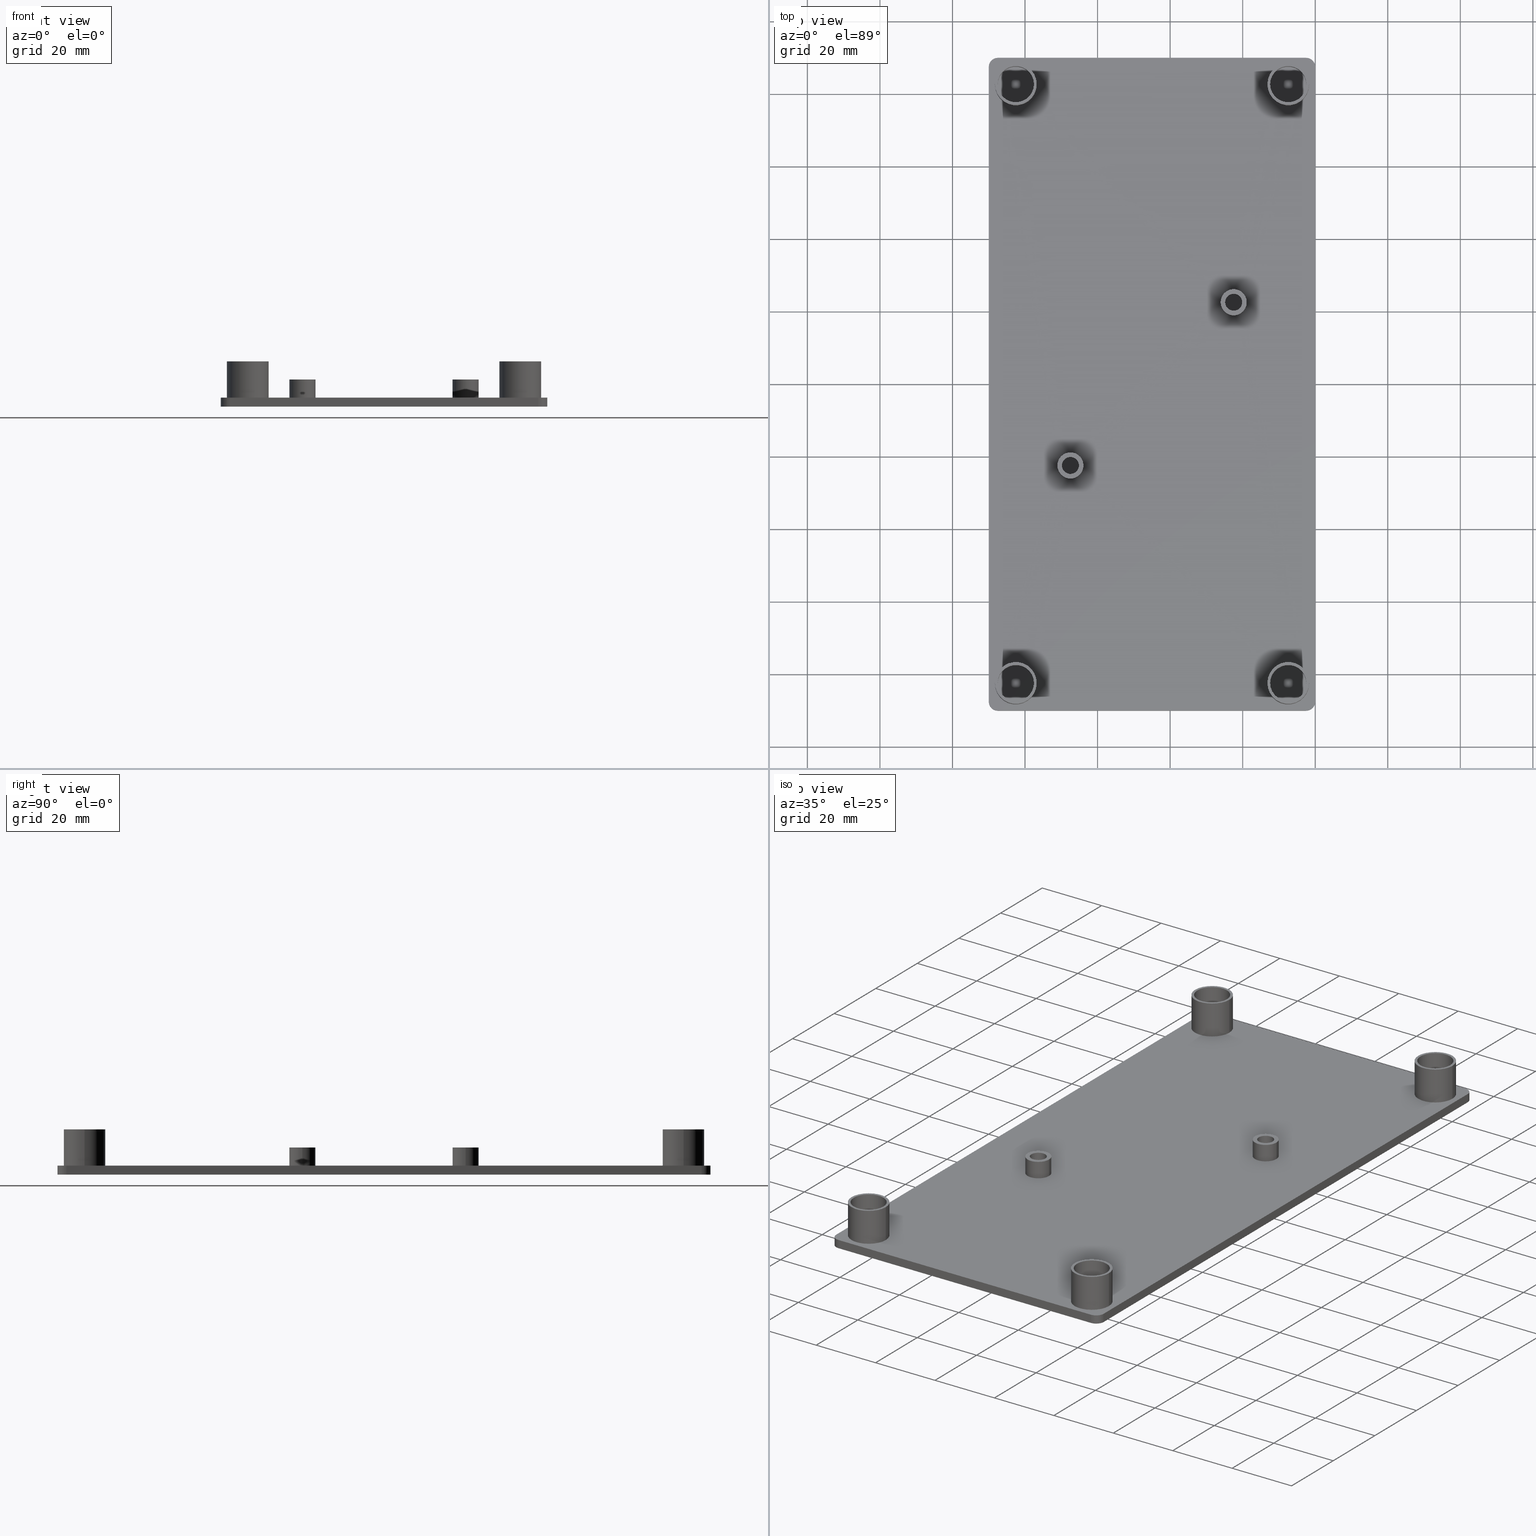
[diagram: canonical four-view strip — front | top / right | iso, engineering-drawing reading convention]
A machine part, canonical four-view strip (front | top / right | iso — engineering-drawing reading convention). The complete STEP part file that produces these views, byte-faithful:
ISO-10303-21;
HEADER;
/****************************************************************
 * Generated by software with PDE/Lib inside                    *
 * PDElib Version v4.4, created Mon 02/23/2004                  *
 * International Technegroup Inc. (www.iti-oh.com)              *
 ****************************************************************/
FILE_DESCRIPTION(('STEP AP203'),'2;1');
FILE_NAME('18.074.00.stp','2011-03-07T09:00:05',(''),(''),'2009.3.110','THINKDESIGN','');
FILE_SCHEMA(('CONFIG_CONTROL_DESIGN'));
ENDSEC;
DATA;
#2=CARTESIAN_POINT('',(0.000000333334668,-87.500000499999999,0.0));
#3=DIRECTION('',(-1.0,-3.809539E-009,0.0));
#4=DIRECTION('',(-3.809539E-009,1.0,0.0));
#5=AXIS2_PLACEMENT_3D('',#2,#3,#4);
#6=PLANE('',#5);
#7=CARTESIAN_POINT('',(0.000000333334668,-87.500000499999999,0.0));
#8=VERTEX_POINT('',#7);
#9=CARTESIAN_POINT('',(0.000000333334668,-87.500000499999999,-2.500000000000000));
#10=VERTEX_POINT('',#9);
#11=CARTESIAN_POINT('',(0.000000333334668,-87.500000499999999,0.0));
#12=DIRECTION('',(0.0,0.0,-1.0));
#13=VECTOR('',#12,2.500000000000000);
#14=LINE('',#11,#13);
#15=EDGE_CURVE('',#8,#10,#14,.T.);
#16=ORIENTED_EDGE('',*,*,#15,.T.);
#17=CARTESIAN_POINT('',(-0.000000333334640,87.500000499999999,-2.500000000000000));
#18=VERTEX_POINT('',#17);
#19=CARTESIAN_POINT('',(0.000000333334668,-87.500000499999999,-2.500000000000000));
#20=DIRECTION('',(-3.809539E-009,1.0,0.0));
#21=VECTOR('',#20,175.000001000000000);
#22=LINE('',#19,#21);
#23=EDGE_CURVE('',#10,#18,#22,.T.);
#24=ORIENTED_EDGE('',*,*,#23,.T.);
#25=CARTESIAN_POINT('',(-0.000000333334640,87.500000499999999,0.0));
#26=VERTEX_POINT('',#25);
#27=CARTESIAN_POINT('',(-0.000000333334640,87.500000499999999,0.0));
#28=DIRECTION('',(0.0,0.0,-1.0));
#29=VECTOR('',#28,2.500000000000000);
#30=LINE('',#27,#29);
#31=EDGE_CURVE('',#26,#18,#30,.T.);
#32=ORIENTED_EDGE('',*,*,#31,.F.);
#33=CARTESIAN_POINT('',(0.000000333334668,-87.500000499999999,0.0));
#34=DIRECTION('',(-3.809539E-009,1.0,0.0));
#35=VECTOR('',#34,175.000001000000000);
#36=LINE('',#33,#35);
#37=EDGE_CURVE('',#8,#26,#36,.T.);
#38=ORIENTED_EDGE('',*,*,#37,.F.);
#39=EDGE_LOOP('',(#16,#24,#32,#38));
#40=FACE_OUTER_BOUND('',#39,.T.);
#41=ADVANCED_FACE('',(#40),#6,.F.);
#42=CARTESIAN_POINT('',(-2.500000333334640,87.500000499999999,0.0));
#43=DIRECTION('',(0.0,0.0,1.0));
#44=DIRECTION('',(1.0,0.0,0.0));
#45=AXIS2_PLACEMENT_3D('',#42,#43,#44);
#46=CYLINDRICAL_SURFACE('',#45,2.500000000000000);
#47=ORIENTED_EDGE('',*,*,#31,.T.);
#48=CARTESIAN_POINT('',(-2.500000333334640,90.000000499999999,-2.500000000000000));
#49=VERTEX_POINT('',#48);
#50=CARTESIAN_POINT('',(-2.500000333334640,87.500000499999999,-2.500000000000000));
#51=DIRECTION('',(0.0,0.0,1.0));
#52=DIRECTION('',(1.0,0.0,0.0));
#53=AXIS2_PLACEMENT_3D('',#50,#51,#52);
#54=CIRCLE('',#53,2.500000000000000);
#55=EDGE_CURVE('',#18,#49,#54,.T.);
#56=ORIENTED_EDGE('',*,*,#55,.T.);
#57=CARTESIAN_POINT('',(-2.500000333334640,90.000000499999999,0.0));
#58=VERTEX_POINT('',#57);
#59=CARTESIAN_POINT('',(-2.500000333334640,90.000000499999999,0.0));
#60=DIRECTION('',(0.0,0.0,-1.0));
#61=VECTOR('',#60,2.500000000000000);
#62=LINE('',#59,#61);
#63=EDGE_CURVE('',#58,#49,#62,.T.);
#64=ORIENTED_EDGE('',*,*,#63,.F.);
#65=CARTESIAN_POINT('',(-2.500000333334640,87.500000499999999,0.0));
#66=DIRECTION('',(0.0,0.0,1.0));
#67=DIRECTION('',(1.0,0.0,0.0));
#68=AXIS2_PLACEMENT_3D('',#65,#66,#67);
#69=CIRCLE('',#68,2.500000000000000);
#70=EDGE_CURVE('',#26,#58,#69,.T.);
#71=ORIENTED_EDGE('',*,*,#70,.F.);
#72=EDGE_LOOP('',(#47,#56,#64,#71));
#73=FACE_OUTER_BOUND('',#72,.T.);
#74=ADVANCED_FACE('',(#73),#46,.T.);
#75=CARTESIAN_POINT('',(-2.500000333334640,90.000000499999999,0.0));
#76=DIRECTION('',(0.0,-1.0,0.0));
#77=DIRECTION('',(-1.0,0.0,0.0));
#78=AXIS2_PLACEMENT_3D('',#75,#76,#77);
#79=PLANE('',#78);
#80=ORIENTED_EDGE('',*,*,#63,.T.);
#81=CARTESIAN_POINT('',(-87.499956333334637,90.000000499999999,-2.500000000000000));
#82=VERTEX_POINT('',#81);
#83=CARTESIAN_POINT('',(-2.500000333334640,90.000000499999999,-2.500000000000000));
#84=DIRECTION('',(-1.0,0.0,0.0));
#85=VECTOR('',#84,84.999955999999997);
#86=LINE('',#83,#85);
#87=EDGE_CURVE('',#49,#82,#86,.T.);
#88=ORIENTED_EDGE('',*,*,#87,.T.);
#89=CARTESIAN_POINT('',(-87.499956333334637,90.000000499999999,0.0));
#90=VERTEX_POINT('',#89);
#91=CARTESIAN_POINT('',(-87.499956333334637,90.000000499999999,0.0));
#92=DIRECTION('',(0.0,0.0,-1.0));
#93=VECTOR('',#92,2.500000000000000);
#94=LINE('',#91,#93);
#95=EDGE_CURVE('',#90,#82,#94,.T.);
#96=ORIENTED_EDGE('',*,*,#95,.F.);
#97=CARTESIAN_POINT('',(-2.500000333334640,90.000000499999999,0.0));
#98=DIRECTION('',(-1.0,0.0,0.0));
#99=VECTOR('',#98,84.999955999999997);
#100=LINE('',#97,#99);
#101=EDGE_CURVE('',#58,#90,#100,.T.);
#102=ORIENTED_EDGE('',*,*,#101,.F.);
#103=EDGE_LOOP('',(#80,#88,#96,#102));
#104=FACE_OUTER_BOUND('',#103,.T.);
#105=ADVANCED_FACE('',(#104),#79,.F.);
#106=CARTESIAN_POINT('',(-87.499956333334637,87.500000499999999,0.0));
#107=DIRECTION('',(0.0,0.0,1.0));
#108=DIRECTION('',(1.0,0.0,0.0));
#109=AXIS2_PLACEMENT_3D('',#106,#107,#108);
#110=CYLINDRICAL_SURFACE('',#109,2.500000000000000);
#111=ORIENTED_EDGE('',*,*,#95,.T.);
#112=CARTESIAN_POINT('',(-89.999956333334652,87.500000499999999,-2.500000000000000));
#113=VERTEX_POINT('',#112);
#114=CARTESIAN_POINT('',(-87.499956333334637,87.500000499999999,-2.500000000000000));
#115=DIRECTION('',(0.0,0.0,1.0));
#116=DIRECTION('',(1.0,0.0,0.0));
#117=AXIS2_PLACEMENT_3D('',#114,#115,#116);
#118=CIRCLE('',#117,2.500000000000000);
#119=EDGE_CURVE('',#82,#113,#118,.T.);
#120=ORIENTED_EDGE('',*,*,#119,.T.);
#121=CARTESIAN_POINT('',(-89.999956333334652,87.500000499999999,0.0));
#122=VERTEX_POINT('',#121);
#123=CARTESIAN_POINT('',(-89.999956333334652,87.500000499999999,0.0));
#124=DIRECTION('',(0.0,0.0,-1.0));
#125=VECTOR('',#124,2.500000000000000);
#126=LINE('',#123,#125);
#127=EDGE_CURVE('',#122,#113,#126,.T.);
#128=ORIENTED_EDGE('',*,*,#127,.F.);
#129=CARTESIAN_POINT('',(-87.499956333334637,87.500000499999999,0.0));
#130=DIRECTION('',(0.0,0.0,1.0));
#131=DIRECTION('',(1.0,0.0,0.0));
#132=AXIS2_PLACEMENT_3D('',#129,#130,#131);
#133=CIRCLE('',#132,2.500000000000000);
#134=EDGE_CURVE('',#90,#122,#133,.T.);
#135=ORIENTED_EDGE('',*,*,#134,.F.);
#136=EDGE_LOOP('',(#111,#120,#128,#135));
#137=FACE_OUTER_BOUND('',#136,.T.);
#138=ADVANCED_FACE('',(#137),#110,.T.);
#139=CARTESIAN_POINT('',(-89.999956333334652,87.500000499999999,0.0));
#140=DIRECTION('',(1.000000000000000,0.000000015238110,0.0));
#141=DIRECTION('',(0.000000015238110,-1.000000000000000,0.0));
#142=AXIS2_PLACEMENT_3D('',#139,#140,#141);
#143=PLANE('',#142);
#144=ORIENTED_EDGE('',*,*,#127,.T.);
#145=CARTESIAN_POINT('',(-89.999953666665334,-87.499999500000001,-2.500000000000000));
#146=VERTEX_POINT('',#145);
#147=CARTESIAN_POINT('',(-89.999956333334652,87.500000499999999,-2.500000000000000));
#148=DIRECTION('',(0.000000015238110,-1.000000000000000,0.0));
#149=VECTOR('',#148,175.000000000000030);
#150=LINE('',#147,#149);
#151=EDGE_CURVE('',#113,#146,#150,.T.);
#152=ORIENTED_EDGE('',*,*,#151,.T.);
#153=CARTESIAN_POINT('',(-89.999953666665334,-87.499999500000001,0.0));
#154=VERTEX_POINT('',#153);
#155=CARTESIAN_POINT('',(-89.999953666665334,-87.499999500000001,0.0));
#156=DIRECTION('',(0.0,0.0,-1.0));
#157=VECTOR('',#156,2.500000000000000);
#158=LINE('',#155,#157);
#159=EDGE_CURVE('',#154,#146,#158,.T.);
#160=ORIENTED_EDGE('',*,*,#159,.F.);
#161=CARTESIAN_POINT('',(-89.999956333334652,87.500000499999999,0.0));
#162=DIRECTION('',(0.000000015238110,-1.000000000000000,0.0));
#163=VECTOR('',#162,175.000000000000030);
#164=LINE('',#161,#163);
#165=EDGE_CURVE('',#122,#154,#164,.T.);
#166=ORIENTED_EDGE('',*,*,#165,.F.);
#167=EDGE_LOOP('',(#144,#152,#160,#166));
#168=FACE_OUTER_BOUND('',#167,.T.);
#169=ADVANCED_FACE('',(#168),#143,.F.);
#170=CARTESIAN_POINT('',(-87.499953666665334,-87.499999500000001,0.0));
#171=DIRECTION('',(0.0,0.0,1.0));
#172=DIRECTION('',(1.0,0.0,0.0));
#173=AXIS2_PLACEMENT_3D('',#170,#171,#172);
#174=CYLINDRICAL_SURFACE('',#173,2.500000000000000);
#175=ORIENTED_EDGE('',*,*,#159,.T.);
#176=CARTESIAN_POINT('',(-87.499953666665334,-89.999999500000001,-2.500000000000000));
#177=VERTEX_POINT('',#176);
#178=CARTESIAN_POINT('',(-87.499953666665334,-87.499999500000001,-2.500000000000000));
#179=DIRECTION('',(0.0,0.0,1.0));
#180=DIRECTION('',(1.0,0.0,0.0));
#181=AXIS2_PLACEMENT_3D('',#178,#179,#180);
#182=CIRCLE('',#181,2.500000000000000);
#183=EDGE_CURVE('',#146,#177,#182,.T.);
#184=ORIENTED_EDGE('',*,*,#183,.T.);
#185=CARTESIAN_POINT('',(-87.499953666665334,-89.999999500000001,0.0));
#186=VERTEX_POINT('',#185);
#187=CARTESIAN_POINT('',(-87.499953666665334,-89.999999500000001,0.0));
#188=DIRECTION('',(0.0,0.0,-1.0));
#189=VECTOR('',#188,2.500000000000000);
#190=LINE('',#187,#189);
#191=EDGE_CURVE('',#186,#177,#190,.T.);
#192=ORIENTED_EDGE('',*,*,#191,.F.);
#193=CARTESIAN_POINT('',(-87.499953666665334,-87.499999500000001,0.0));
#194=DIRECTION('',(0.0,0.0,1.0));
#195=DIRECTION('',(1.0,0.0,0.0));
#196=AXIS2_PLACEMENT_3D('',#193,#194,#195);
#197=CIRCLE('',#196,2.500000000000000);
#198=EDGE_CURVE('',#154,#186,#197,.T.);
#199=ORIENTED_EDGE('',*,*,#198,.F.);
#200=EDGE_LOOP('',(#175,#184,#192,#199));
#201=FACE_OUTER_BOUND('',#200,.T.);
#202=ADVANCED_FACE('',(#201),#174,.T.);
#203=CARTESIAN_POINT('',(-87.499953666665334,-89.999999500000001,0.0));
#204=DIRECTION('',(0.000000011764712,1.0,0.0));
#205=DIRECTION('',(1.0,-0.000000011764712,0.0));
#206=AXIS2_PLACEMENT_3D('',#203,#204,#205);
#207=PLANE('',#206);
#208=ORIENTED_EDGE('',*,*,#191,.T.);
#209=CARTESIAN_POINT('',(-2.499999666665318,-90.000000499999999,-2.500000000000000));
#210=VERTEX_POINT('',#209);
#211=CARTESIAN_POINT('',(-87.499953666665334,-89.999999500000001,-2.500000000000000));
#212=DIRECTION('',(1.0,-0.000000011764712,0.0));
#213=VECTOR('',#212,84.999954000000017);
#214=LINE('',#211,#213);
#215=EDGE_CURVE('',#177,#210,#214,.T.);
#216=ORIENTED_EDGE('',*,*,#215,.T.);
#217=CARTESIAN_POINT('',(-2.499999666665318,-90.000000499999999,0.0));
#218=VERTEX_POINT('',#217);
#219=CARTESIAN_POINT('',(-2.499999666665318,-90.000000499999999,0.0));
#220=DIRECTION('',(0.0,0.0,-1.0));
#221=VECTOR('',#220,2.500000000000000);
#222=LINE('',#219,#221);
#223=EDGE_CURVE('',#218,#210,#222,.T.);
#224=ORIENTED_EDGE('',*,*,#223,.F.);
#225=CARTESIAN_POINT('',(-87.499953666665334,-89.999999500000001,0.0));
#226=DIRECTION('',(1.0,-0.000000011764712,0.0));
#227=VECTOR('',#226,84.999954000000017);
#228=LINE('',#225,#227);
#229=EDGE_CURVE('',#186,#218,#228,.T.);
#230=ORIENTED_EDGE('',*,*,#229,.F.);
#231=EDGE_LOOP('',(#208,#216,#224,#230));
#232=FACE_OUTER_BOUND('',#231,.T.);
#233=ADVANCED_FACE('',(#232),#207,.F.);
#234=CARTESIAN_POINT('',(-2.499999666665318,-87.500000499999999,0.0));
#235=DIRECTION('',(0.0,0.0,1.0));
#236=DIRECTION('',(5.053215E-016,-1.0,0.0));
#237=AXIS2_PLACEMENT_3D('',#234,#235,#236);
#238=CYLINDRICAL_SURFACE('',#237,2.500000000000000);
#239=ORIENTED_EDGE('',*,*,#223,.T.);
#240=CARTESIAN_POINT('',(-2.499999666665318,-87.500000499999999,-2.500000000000000));
#241=DIRECTION('',(0.0,0.0,1.0));
#242=DIRECTION('',(1.0,0.0,0.0));
#243=AXIS2_PLACEMENT_3D('',#240,#241,#242);
#244=CIRCLE('',#243,2.500000000000000);
#245=EDGE_CURVE('',#210,#10,#244,.T.);
#246=ORIENTED_EDGE('',*,*,#245,.T.);
#247=ORIENTED_EDGE('',*,*,#15,.F.);
#248=CARTESIAN_POINT('',(-2.499999666665318,-87.500000499999999,0.0));
#249=DIRECTION('',(0.0,0.0,1.0));
#250=DIRECTION('',(1.0,0.0,0.0));
#251=AXIS2_PLACEMENT_3D('',#248,#249,#250);
#252=CIRCLE('',#251,2.500000000000000);
#253=EDGE_CURVE('',#218,#8,#252,.T.);
#254=ORIENTED_EDGE('',*,*,#253,.F.);
#255=EDGE_LOOP('',(#239,#246,#247,#254));
#256=FACE_OUTER_BOUND('',#255,.T.);
#257=ADVANCED_FACE('',(#256),#238,.T.);
#258=CARTESIAN_POINT('',(-99.000072002600461,-108.000120602159830,0.0));
#259=DIRECTION('',(0.0,0.0,1.0));
#260=DIRECTION('',(1.0,0.0,0.0));
#261=AXIS2_PLACEMENT_3D('',#258,#259,#260);
#262=PLANE('',#261);
#263=ORIENTED_EDGE('',*,*,#37,.T.);
#264=ORIENTED_EDGE('',*,*,#70,.T.);
#265=ORIENTED_EDGE('',*,*,#101,.T.);
#266=ORIENTED_EDGE('',*,*,#134,.T.);
#267=ORIENTED_EDGE('',*,*,#165,.T.);
#268=ORIENTED_EDGE('',*,*,#198,.T.);
#269=ORIENTED_EDGE('',*,*,#229,.T.);
#270=ORIENTED_EDGE('',*,*,#253,.T.);
#271=EDGE_LOOP('',(#263,#264,#265,#266,#267,#268,#269,#270));
#272=FACE_OUTER_BOUND('',#271,.T.);
#273=CARTESIAN_POINT('',(-13.199998666665323,-82.550044500000070,0.0));
#274=VERTEX_POINT('',#273);
#275=CARTESIAN_POINT('',(-1.699998666665323,-82.550044500000070,0.0));
#276=VERTEX_POINT('',#275);
#277=CARTESIAN_POINT('',(-7.449998666665323,-82.550044500000070,0.0));
#278=DIRECTION('',(0.0,0.0,1.0));
#279=DIRECTION('',(1.0,0.0,0.0));
#280=AXIS2_PLACEMENT_3D('',#277,#278,#279);
#281=CIRCLE('',#280,5.750000000000000);
#282=EDGE_CURVE('',#274,#276,#281,.T.);
#283=ORIENTED_EDGE('',*,*,#282,.F.);
#284=CARTESIAN_POINT('',(-7.449998666665323,-82.550044500000070,0.0));
#285=DIRECTION('',(0.0,0.0,1.0));
#286=DIRECTION('',(1.0,0.0,0.0));
#287=AXIS2_PLACEMENT_3D('',#284,#285,#286);
#288=CIRCLE('',#287,5.750000000000000);
#289=EDGE_CURVE('',#276,#274,#288,.T.);
#290=ORIENTED_EDGE('',*,*,#289,.F.);
#291=EDGE_LOOP('',(#283,#290));
#292=FACE_BOUND('',#291,.T.);
#293=CARTESIAN_POINT('',(-88.299998666665346,-82.550044500000070,0.0));
#294=VERTEX_POINT('',#293);
#295=CARTESIAN_POINT('',(-76.799998666665346,-82.550044500000070,0.0));
#296=VERTEX_POINT('',#295);
#297=CARTESIAN_POINT('',(-82.549998666665346,-82.550044500000070,0.0));
#298=DIRECTION('',(0.0,0.0,1.0));
#299=DIRECTION('',(1.0,0.0,0.0));
#300=AXIS2_PLACEMENT_3D('',#297,#298,#299);
#301=CIRCLE('',#300,5.750000000000000);
#302=EDGE_CURVE('',#294,#296,#301,.T.);
#303=ORIENTED_EDGE('',*,*,#302,.F.);
#304=CARTESIAN_POINT('',(-82.549998666665346,-82.550044500000070,0.0));
#305=DIRECTION('',(0.0,0.0,1.0));
#306=DIRECTION('',(1.0,0.0,0.0));
#307=AXIS2_PLACEMENT_3D('',#304,#305,#306);
#308=CIRCLE('',#307,5.750000000000000);
#309=EDGE_CURVE('',#296,#294,#308,.T.);
#310=ORIENTED_EDGE('',*,*,#309,.F.);
#311=EDGE_LOOP('',(#303,#310));
#312=FACE_BOUND('',#311,.T.);
#313=CARTESIAN_POINT('',(-13.200000333334643,82.550000499999953,0.0));
#314=VERTEX_POINT('',#313);
#315=CARTESIAN_POINT('',(-1.700000333334643,82.550000499999953,0.0));
#316=VERTEX_POINT('',#315);
#317=CARTESIAN_POINT('',(-7.450000333334643,82.550000499999953,0.0));
#318=DIRECTION('',(0.0,0.0,1.0));
#319=DIRECTION('',(1.0,0.0,0.0));
#320=AXIS2_PLACEMENT_3D('',#317,#318,#319);
#321=CIRCLE('',#320,5.750000000000000);
#322=EDGE_CURVE('',#314,#316,#321,.T.);
#323=ORIENTED_EDGE('',*,*,#322,.F.);
#324=CARTESIAN_POINT('',(-7.450000333334643,82.550000499999953,0.0));
#325=DIRECTION('',(0.0,0.0,1.0));
#326=DIRECTION('',(1.0,0.0,0.0));
#327=AXIS2_PLACEMENT_3D('',#324,#325,#326);
#328=CIRCLE('',#327,5.750000000000000);
#329=EDGE_CURVE('',#316,#314,#328,.T.);
#330=ORIENTED_EDGE('',*,*,#329,.F.);
#331=EDGE_LOOP('',(#323,#330));
#332=FACE_BOUND('',#331,.T.);
#333=CARTESIAN_POINT('',(-88.300000333334665,82.550045499999953,0.0));
#334=VERTEX_POINT('',#333);
#335=CARTESIAN_POINT('',(-76.800000333334665,82.550045499999953,0.0));
#336=VERTEX_POINT('',#335);
#337=CARTESIAN_POINT('',(-82.550000333334665,82.550045499999953,0.0));
#338=DIRECTION('',(0.0,0.0,1.0));
#339=DIRECTION('',(1.0,0.0,0.0));
#340=AXIS2_PLACEMENT_3D('',#337,#338,#339);
#341=CIRCLE('',#340,5.750000000000000);
#342=EDGE_CURVE('',#334,#336,#341,.T.);
#343=ORIENTED_EDGE('',*,*,#342,.F.);
#344=CARTESIAN_POINT('',(-82.550000333334665,82.550045499999953,0.0));
#345=DIRECTION('',(0.0,0.0,1.0));
#346=DIRECTION('',(1.0,0.0,0.0));
#347=AXIS2_PLACEMENT_3D('',#344,#345,#346);
#348=CIRCLE('',#347,5.750000000000000);
#349=EDGE_CURVE('',#336,#334,#348,.T.);
#350=ORIENTED_EDGE('',*,*,#349,.F.);
#351=EDGE_LOOP('',(#343,#350));
#352=FACE_BOUND('',#351,.T.);
#353=CARTESIAN_POINT('',(-71.099974999995993,-22.500000499999999,0.0));
#354=VERTEX_POINT('',#353);
#355=CARTESIAN_POINT('',(-63.899974999995997,-22.500000499999999,0.0));
#356=VERTEX_POINT('',#355);
#357=CARTESIAN_POINT('',(-67.499974999995999,-22.500000499999999,0.0));
#358=DIRECTION('',(0.0,0.0,1.0));
#359=DIRECTION('',(1.0,0.0,0.0));
#360=AXIS2_PLACEMENT_3D('',#357,#358,#359);
#361=CIRCLE('',#360,3.600000000000000);
#362=EDGE_CURVE('',#354,#356,#361,.T.);
#363=ORIENTED_EDGE('',*,*,#362,.F.);
#364=CARTESIAN_POINT('',(-67.499974999995999,-22.500000499999999,0.0));
#365=DIRECTION('',(0.0,0.0,1.0));
#366=DIRECTION('',(1.0,0.0,0.0));
#367=AXIS2_PLACEMENT_3D('',#364,#365,#366);
#368=CIRCLE('',#367,3.600000000000000);
#369=EDGE_CURVE('',#356,#354,#368,.T.);
#370=ORIENTED_EDGE('',*,*,#369,.F.);
#371=EDGE_LOOP('',(#363,#370));
#372=FACE_BOUND('',#371,.T.);
#373=CARTESIAN_POINT('',(-26.099978333334640,22.500000499999999,0.0));
#374=VERTEX_POINT('',#373);
#375=CARTESIAN_POINT('',(-18.899978333334644,22.500000499999999,0.0));
#376=VERTEX_POINT('',#375);
#377=CARTESIAN_POINT('',(-22.499978333334639,22.500000499999999,0.0));
#378=DIRECTION('',(0.0,0.0,1.0));
#379=DIRECTION('',(1.0,0.0,0.0));
#380=AXIS2_PLACEMENT_3D('',#377,#378,#379);
#381=CIRCLE('',#380,3.600000000000000);
#382=EDGE_CURVE('',#374,#376,#381,.T.);
#383=ORIENTED_EDGE('',*,*,#382,.F.);
#384=CARTESIAN_POINT('',(-22.499978333334639,22.500000499999999,0.0));
#385=DIRECTION('',(0.0,0.0,1.0));
#386=DIRECTION('',(1.0,0.0,0.0));
#387=AXIS2_PLACEMENT_3D('',#384,#385,#386);
#388=CIRCLE('',#387,3.600000000000000);
#389=EDGE_CURVE('',#376,#374,#388,.T.);
#390=ORIENTED_EDGE('',*,*,#389,.F.);
#391=EDGE_LOOP('',(#383,#390));
#392=FACE_BOUND('',#391,.T.);
#393=ADVANCED_FACE('',(#272,#292,#312,#332,#352,#372,#392),#262,.T.);
#394=CARTESIAN_POINT('',(-99.000072002600461,-108.000120602159830,0.0));
#395=DIRECTION('',(0.0,0.0,1.0));
#396=DIRECTION('',(1.0,0.0,0.0));
#397=AXIS2_PLACEMENT_3D('',#394,#395,#396);
#398=PLANE('',#397);
#399=CARTESIAN_POINT('',(-24.849978333334640,22.500000499999999,0.0));
#400=VERTEX_POINT('',#399);
#401=CARTESIAN_POINT('',(-20.149978333334644,22.500000499999999,0.0));
#402=VERTEX_POINT('',#401);
#403=CARTESIAN_POINT('',(-22.499978333334639,22.500000499999999,0.0));
#404=DIRECTION('',(0.0,0.0,-1.0));
#405=DIRECTION('',(1.0,0.0,0.0));
#406=AXIS2_PLACEMENT_3D('',#403,#404,#405);
#407=CIRCLE('',#406,2.350000000000000);
#408=EDGE_CURVE('',#400,#402,#407,.T.);
#409=ORIENTED_EDGE('',*,*,#408,.F.);
#410=CARTESIAN_POINT('',(-22.499978333334639,22.500000499999999,0.0));
#411=DIRECTION('',(0.0,0.0,-1.0));
#412=DIRECTION('',(1.0,0.0,0.0));
#413=AXIS2_PLACEMENT_3D('',#410,#411,#412);
#414=CIRCLE('',#413,2.350000000000000);
#415=EDGE_CURVE('',#402,#400,#414,.T.);
#416=ORIENTED_EDGE('',*,*,#415,.F.);
#417=EDGE_LOOP('',(#409,#416));
#418=FACE_OUTER_BOUND('',#417,.T.);
#419=ADVANCED_FACE('',(#418),#398,.T.);
#420=CARTESIAN_POINT('',(-99.000072002600461,-108.000120602159830,0.0));
#421=DIRECTION('',(0.0,0.0,1.0));
#422=DIRECTION('',(1.0,0.0,0.0));
#423=AXIS2_PLACEMENT_3D('',#420,#421,#422);
#424=PLANE('',#423);
#425=CARTESIAN_POINT('',(-69.849974999995993,-22.500000499999999,0.0));
#426=VERTEX_POINT('',#425);
#427=CARTESIAN_POINT('',(-65.149974999996004,-22.500000499999999,0.0));
#428=VERTEX_POINT('',#427);
#429=CARTESIAN_POINT('',(-67.499974999995999,-22.500000499999999,0.0));
#430=DIRECTION('',(0.0,0.0,-1.0));
#431=DIRECTION('',(1.0,0.0,0.0));
#432=AXIS2_PLACEMENT_3D('',#429,#430,#431);
#433=CIRCLE('',#432,2.350000000000000);
#434=EDGE_CURVE('',#426,#428,#433,.T.);
#435=ORIENTED_EDGE('',*,*,#434,.F.);
#436=CARTESIAN_POINT('',(-67.499974999995999,-22.500000499999999,0.0));
#437=DIRECTION('',(0.0,0.0,-1.0));
#438=DIRECTION('',(1.0,0.0,0.0));
#439=AXIS2_PLACEMENT_3D('',#436,#437,#438);
#440=CIRCLE('',#439,2.350000000000000);
#441=EDGE_CURVE('',#428,#426,#440,.T.);
#442=ORIENTED_EDGE('',*,*,#441,.F.);
#443=EDGE_LOOP('',(#435,#442));
#444=FACE_OUTER_BOUND('',#443,.T.);
#445=ADVANCED_FACE('',(#444),#424,.T.);
#446=CARTESIAN_POINT('',(-99.000072002600461,-108.000120602159830,0.0));
#447=DIRECTION('',(0.0,0.0,1.0));
#448=DIRECTION('',(1.0,0.0,0.0));
#449=AXIS2_PLACEMENT_3D('',#446,#447,#448);
#450=PLANE('',#449);
#451=CARTESIAN_POINT('',(-87.550000333334665,82.550045499999953,0.0));
#452=VERTEX_POINT('',#451);
#453=CARTESIAN_POINT('',(-77.550000333334665,82.550045499999953,0.0));
#454=VERTEX_POINT('',#453);
#455=CARTESIAN_POINT('',(-82.550000333334665,82.550045499999953,0.0));
#456=DIRECTION('',(0.0,0.0,-1.0));
#457=DIRECTION('',(1.0,0.0,0.0));
#458=AXIS2_PLACEMENT_3D('',#455,#456,#457);
#459=CIRCLE('',#458,5.0);
#460=EDGE_CURVE('',#452,#454,#459,.T.);
#461=ORIENTED_EDGE('',*,*,#460,.F.);
#462=CARTESIAN_POINT('',(-82.550000333334665,82.550045499999953,0.0));
#463=DIRECTION('',(0.0,0.0,-1.0));
#464=DIRECTION('',(1.0,0.0,0.0));
#465=AXIS2_PLACEMENT_3D('',#462,#463,#464);
#466=CIRCLE('',#465,5.0);
#467=EDGE_CURVE('',#454,#452,#466,.T.);
#468=ORIENTED_EDGE('',*,*,#467,.F.);
#469=EDGE_LOOP('',(#461,#468));
#470=FACE_OUTER_BOUND('',#469,.T.);
#471=ADVANCED_FACE('',(#470),#450,.T.);
#472=CARTESIAN_POINT('',(-99.000072002600461,-108.000120602159830,0.0));
#473=DIRECTION('',(0.0,0.0,1.0));
#474=DIRECTION('',(1.0,0.0,0.0));
#475=AXIS2_PLACEMENT_3D('',#472,#473,#474);
#476=PLANE('',#475);
#477=CARTESIAN_POINT('',(-12.450000333334643,82.550000499999953,0.0));
#478=VERTEX_POINT('',#477);
#479=CARTESIAN_POINT('',(-2.450000333334643,82.550000499999953,0.0));
#480=VERTEX_POINT('',#479);
#481=CARTESIAN_POINT('',(-7.450000333334643,82.550000499999953,0.0));
#482=DIRECTION('',(0.0,0.0,-1.0));
#483=DIRECTION('',(1.0,0.0,0.0));
#484=AXIS2_PLACEMENT_3D('',#481,#482,#483);
#485=CIRCLE('',#484,5.0);
#486=EDGE_CURVE('',#478,#480,#485,.T.);
#487=ORIENTED_EDGE('',*,*,#486,.F.);
#488=CARTESIAN_POINT('',(-7.450000333334643,82.550000499999953,0.0));
#489=DIRECTION('',(0.0,0.0,-1.0));
#490=DIRECTION('',(1.0,0.0,0.0));
#491=AXIS2_PLACEMENT_3D('',#488,#489,#490);
#492=CIRCLE('',#491,5.0);
#493=EDGE_CURVE('',#480,#478,#492,.T.);
#494=ORIENTED_EDGE('',*,*,#493,.F.);
#495=EDGE_LOOP('',(#487,#494));
#496=FACE_OUTER_BOUND('',#495,.T.);
#497=ADVANCED_FACE('',(#496),#476,.T.);
#498=CARTESIAN_POINT('',(-99.000072002600461,-108.000120602159830,0.0));
#499=DIRECTION('',(0.0,0.0,1.0));
#500=DIRECTION('',(1.0,0.0,0.0));
#501=AXIS2_PLACEMENT_3D('',#498,#499,#500);
#502=PLANE('',#501);
#503=CARTESIAN_POINT('',(-87.549998666665346,-82.550044500000070,0.0));
#504=VERTEX_POINT('',#503);
#505=CARTESIAN_POINT('',(-77.549998666665346,-82.550044500000070,0.0));
#506=VERTEX_POINT('',#505);
#507=CARTESIAN_POINT('',(-82.549998666665346,-82.550044500000070,0.0));
#508=DIRECTION('',(0.0,0.0,-1.0));
#509=DIRECTION('',(1.0,0.0,0.0));
#510=AXIS2_PLACEMENT_3D('',#507,#508,#509);
#511=CIRCLE('',#510,5.0);
#512=EDGE_CURVE('',#504,#506,#511,.T.);
#513=ORIENTED_EDGE('',*,*,#512,.F.);
#514=CARTESIAN_POINT('',(-82.549998666665346,-82.550044500000070,0.0));
#515=DIRECTION('',(0.0,0.0,-1.0));
#516=DIRECTION('',(1.0,0.0,0.0));
#517=AXIS2_PLACEMENT_3D('',#514,#515,#516);
#518=CIRCLE('',#517,5.0);
#519=EDGE_CURVE('',#506,#504,#518,.T.);
#520=ORIENTED_EDGE('',*,*,#519,.F.);
#521=EDGE_LOOP('',(#513,#520));
#522=FACE_OUTER_BOUND('',#521,.T.);
#523=ADVANCED_FACE('',(#522),#502,.T.);
#524=CARTESIAN_POINT('',(-99.000072002600461,-108.000120602159830,0.0));
#525=DIRECTION('',(0.0,0.0,1.0));
#526=DIRECTION('',(1.0,0.0,0.0));
#527=AXIS2_PLACEMENT_3D('',#524,#525,#526);
#528=PLANE('',#527);
#529=CARTESIAN_POINT('',(-12.449998666665323,-82.550044500000070,0.0));
#530=VERTEX_POINT('',#529);
#531=CARTESIAN_POINT('',(-2.449998666665323,-82.550044500000070,0.0));
#532=VERTEX_POINT('',#531);
#533=CARTESIAN_POINT('',(-7.449998666665323,-82.550044500000070,0.0));
#534=DIRECTION('',(0.0,0.0,-1.0));
#535=DIRECTION('',(1.0,0.0,0.0));
#536=AXIS2_PLACEMENT_3D('',#533,#534,#535);
#537=CIRCLE('',#536,5.0);
#538=EDGE_CURVE('',#530,#532,#537,.T.);
#539=ORIENTED_EDGE('',*,*,#538,.F.);
#540=CARTESIAN_POINT('',(-7.449998666665323,-82.550044500000070,0.0));
#541=DIRECTION('',(0.0,0.0,-1.0));
#542=DIRECTION('',(1.0,0.0,0.0));
#543=AXIS2_PLACEMENT_3D('',#540,#541,#542);
#544=CIRCLE('',#543,5.0);
#545=EDGE_CURVE('',#532,#530,#544,.T.);
#546=ORIENTED_EDGE('',*,*,#545,.F.);
#547=EDGE_LOOP('',(#539,#546));
#548=FACE_OUTER_BOUND('',#547,.T.);
#549=ADVANCED_FACE('',(#548),#528,.T.);
#550=CARTESIAN_POINT('',(-99.000072002600461,-108.000120602159830,-2.500000000000000));
#551=DIRECTION('',(0.0,0.0,1.0));
#552=DIRECTION('',(1.0,0.0,0.0));
#553=AXIS2_PLACEMENT_3D('',#550,#551,#552);
#554=PLANE('',#553);
#555=ORIENTED_EDGE('',*,*,#245,.F.);
#556=ORIENTED_EDGE('',*,*,#215,.F.);
#557=ORIENTED_EDGE('',*,*,#183,.F.);
#558=ORIENTED_EDGE('',*,*,#151,.F.);
#559=ORIENTED_EDGE('',*,*,#119,.F.);
#560=ORIENTED_EDGE('',*,*,#87,.F.);
#561=ORIENTED_EDGE('',*,*,#55,.F.);
#562=ORIENTED_EDGE('',*,*,#23,.F.);
#563=EDGE_LOOP('',(#555,#556,#557,#558,#559,#560,#561,#562));
#564=FACE_OUTER_BOUND('',#563,.T.);
#565=ADVANCED_FACE('',(#564),#554,.F.);
#566=CARTESIAN_POINT('',(-7.449998666665323,-82.550044500000070,0.0));
#567=DIRECTION('',(0.0,0.0,1.0));
#568=DIRECTION('',(1.0,0.0,0.0));
#569=AXIS2_PLACEMENT_3D('',#566,#567,#568);
#570=CYLINDRICAL_SURFACE('',#569,5.750000000000000);
#571=CARTESIAN_POINT('',(-13.199998666665323,-82.550044500000070,10.0));
#572=VERTEX_POINT('',#571);
#573=CARTESIAN_POINT('',(-1.699998666665323,-82.550044500000070,10.0));
#574=VERTEX_POINT('',#573);
#575=CARTESIAN_POINT('',(-7.449998666665323,-82.550044500000070,10.0));
#576=DIRECTION('',(0.0,0.0,1.0));
#577=DIRECTION('',(1.0,0.0,0.0));
#578=AXIS2_PLACEMENT_3D('',#575,#576,#577);
#579=CIRCLE('',#578,5.750000000000000);
#580=EDGE_CURVE('',#572,#574,#579,.T.);
#581=ORIENTED_EDGE('',*,*,#580,.F.);
#582=CARTESIAN_POINT('',(-7.449998666665323,-82.550044500000070,10.0));
#583=DIRECTION('',(0.0,0.0,1.0));
#584=DIRECTION('',(1.0,0.0,0.0));
#585=AXIS2_PLACEMENT_3D('',#582,#583,#584);
#586=CIRCLE('',#585,5.750000000000000);
#587=EDGE_CURVE('',#574,#572,#586,.T.);
#588=ORIENTED_EDGE('',*,*,#587,.F.);
#589=CARTESIAN_POINT('',(-1.699998666665323,-82.550044500000070,0.0));
#590=DIRECTION('',(0.0,0.0,1.0));
#591=VECTOR('',#590,10.0);
#592=LINE('',#589,#591);
#593=EDGE_CURVE('',#276,#574,#592,.T.);
#594=ORIENTED_EDGE('',*,*,#593,.F.);
#595=ORIENTED_EDGE('',*,*,#289,.T.);
#596=ORIENTED_EDGE('',*,*,#282,.T.);
#597=ORIENTED_EDGE('',*,*,#593,.T.);
#598=EDGE_LOOP('',(#581,#588,#594,#595,#596,#597));
#599=FACE_OUTER_BOUND('',#598,.T.);
#600=ADVANCED_FACE('',(#599),#570,.T.);
#601=CARTESIAN_POINT('',(-7.449998666665323,-82.550044500000070,0.0));
#602=DIRECTION('',(0.0,0.0,-1.0));
#603=DIRECTION('',(1.0,-2.449294E-016,0.0));
#604=AXIS2_PLACEMENT_3D('',#601,#602,#603);
#605=CYLINDRICAL_SURFACE('',#604,5.0);
#606=CARTESIAN_POINT('',(-12.449998666665323,-82.550044500000070,10.0));
#607=VERTEX_POINT('',#606);
#608=CARTESIAN_POINT('',(-2.449998666665323,-82.550044500000070,10.0));
#609=VERTEX_POINT('',#608);
#610=CARTESIAN_POINT('',(-7.449998666665323,-82.550044500000070,10.0));
#611=DIRECTION('',(0.0,0.0,-1.0));
#612=DIRECTION('',(1.0,0.0,0.0));
#613=AXIS2_PLACEMENT_3D('',#610,#611,#612);
#614=CIRCLE('',#613,5.0);
#615=EDGE_CURVE('',#607,#609,#614,.T.);
#616=ORIENTED_EDGE('',*,*,#615,.F.);
#617=CARTESIAN_POINT('',(-7.449998666665323,-82.550044500000070,10.0));
#618=DIRECTION('',(0.0,0.0,-1.0));
#619=DIRECTION('',(1.0,0.0,0.0));
#620=AXIS2_PLACEMENT_3D('',#617,#618,#619);
#621=CIRCLE('',#620,5.0);
#622=EDGE_CURVE('',#609,#607,#621,.T.);
#623=ORIENTED_EDGE('',*,*,#622,.F.);
#624=CARTESIAN_POINT('',(-2.449998666665323,-82.550044500000070,0.0));
#625=DIRECTION('',(0.0,0.0,1.0));
#626=VECTOR('',#625,10.0);
#627=LINE('',#624,#626);
#628=EDGE_CURVE('',#532,#609,#627,.T.);
#629=ORIENTED_EDGE('',*,*,#628,.F.);
#630=ORIENTED_EDGE('',*,*,#545,.T.);
#631=ORIENTED_EDGE('',*,*,#538,.T.);
#632=ORIENTED_EDGE('',*,*,#628,.T.);
#633=EDGE_LOOP('',(#616,#623,#629,#630,#631,#632));
#634=FACE_OUTER_BOUND('',#633,.T.);
#635=ADVANCED_FACE('',(#634),#605,.F.);
#636=CARTESIAN_POINT('',(-14.350118668820329,-89.450164502127052,10.0));
#637=DIRECTION('',(0.0,0.0,1.0));
#638=DIRECTION('',(1.0,0.0,0.0));
#639=AXIS2_PLACEMENT_3D('',#636,#637,#638);
#640=PLANE('',#639);
#641=ORIENTED_EDGE('',*,*,#587,.T.);
#642=ORIENTED_EDGE('',*,*,#580,.T.);
#643=EDGE_LOOP('',(#641,#642));
#644=FACE_OUTER_BOUND('',#643,.T.);
#645=ORIENTED_EDGE('',*,*,#622,.T.);
#646=ORIENTED_EDGE('',*,*,#615,.T.);
#647=EDGE_LOOP('',(#645,#646));
#648=FACE_BOUND('',#647,.T.);
#649=ADVANCED_FACE('',(#644,#648),#640,.T.);
#650=CARTESIAN_POINT('',(-82.549998666665346,-82.550044500000070,0.0));
#651=DIRECTION('',(0.0,0.0,1.0));
#652=DIRECTION('',(1.0,0.0,0.0));
#653=AXIS2_PLACEMENT_3D('',#650,#651,#652);
#654=CYLINDRICAL_SURFACE('',#653,5.750000000000000);
#655=CARTESIAN_POINT('',(-88.299998666665346,-82.550044500000070,10.0));
#656=VERTEX_POINT('',#655);
#657=CARTESIAN_POINT('',(-76.799998666665346,-82.550044500000070,10.0));
#658=VERTEX_POINT('',#657);
#659=CARTESIAN_POINT('',(-82.549998666665346,-82.550044500000070,10.0));
#660=DIRECTION('',(0.0,0.0,1.0));
#661=DIRECTION('',(1.0,0.0,0.0));
#662=AXIS2_PLACEMENT_3D('',#659,#660,#661);
#663=CIRCLE('',#662,5.750000000000000);
#664=EDGE_CURVE('',#656,#658,#663,.T.);
#665=ORIENTED_EDGE('',*,*,#664,.F.);
#666=CARTESIAN_POINT('',(-82.549998666665346,-82.550044500000070,10.0));
#667=DIRECTION('',(0.0,0.0,1.0));
#668=DIRECTION('',(1.0,0.0,0.0));
#669=AXIS2_PLACEMENT_3D('',#666,#667,#668);
#670=CIRCLE('',#669,5.750000000000000);
#671=EDGE_CURVE('',#658,#656,#670,.T.);
#672=ORIENTED_EDGE('',*,*,#671,.F.);
#673=CARTESIAN_POINT('',(-76.799998666665346,-82.550044500000070,0.0));
#674=DIRECTION('',(0.0,0.0,1.0));
#675=VECTOR('',#674,10.0);
#676=LINE('',#673,#675);
#677=EDGE_CURVE('',#296,#658,#676,.T.);
#678=ORIENTED_EDGE('',*,*,#677,.F.);
#679=ORIENTED_EDGE('',*,*,#309,.T.);
#680=ORIENTED_EDGE('',*,*,#302,.T.);
#681=ORIENTED_EDGE('',*,*,#677,.T.);
#682=EDGE_LOOP('',(#665,#672,#678,#679,#680,#681));
#683=FACE_OUTER_BOUND('',#682,.T.);
#684=ADVANCED_FACE('',(#683),#654,.T.);
#685=CARTESIAN_POINT('',(-82.549998666665346,-82.550044500000070,0.0));
#686=DIRECTION('',(0.0,0.0,-1.0));
#687=DIRECTION('',(1.0,-2.449294E-016,0.0));
#688=AXIS2_PLACEMENT_3D('',#685,#686,#687);
#689=CYLINDRICAL_SURFACE('',#688,5.0);
#690=CARTESIAN_POINT('',(-87.549998666665346,-82.550044500000070,10.0));
#691=VERTEX_POINT('',#690);
#692=CARTESIAN_POINT('',(-77.549998666665346,-82.550044500000070,10.0));
#693=VERTEX_POINT('',#692);
#694=CARTESIAN_POINT('',(-82.549998666665346,-82.550044500000070,10.0));
#695=DIRECTION('',(0.0,0.0,-1.0));
#696=DIRECTION('',(1.0,0.0,0.0));
#697=AXIS2_PLACEMENT_3D('',#694,#695,#696);
#698=CIRCLE('',#697,5.0);
#699=EDGE_CURVE('',#691,#693,#698,.T.);
#700=ORIENTED_EDGE('',*,*,#699,.F.);
#701=CARTESIAN_POINT('',(-82.549998666665346,-82.550044500000070,10.0));
#702=DIRECTION('',(0.0,0.0,-1.0));
#703=DIRECTION('',(1.0,0.0,0.0));
#704=AXIS2_PLACEMENT_3D('',#701,#702,#703);
#705=CIRCLE('',#704,5.0);
#706=EDGE_CURVE('',#693,#691,#705,.T.);
#707=ORIENTED_EDGE('',*,*,#706,.F.);
#708=CARTESIAN_POINT('',(-77.549998666665346,-82.550044500000070,0.0));
#709=DIRECTION('',(0.0,0.0,1.0));
#710=VECTOR('',#709,10.0);
#711=LINE('',#708,#710);
#712=EDGE_CURVE('',#506,#693,#711,.T.);
#713=ORIENTED_EDGE('',*,*,#712,.F.);
#714=ORIENTED_EDGE('',*,*,#519,.T.);
#715=ORIENTED_EDGE('',*,*,#512,.T.);
#716=ORIENTED_EDGE('',*,*,#712,.T.);
#717=EDGE_LOOP('',(#700,#707,#713,#714,#715,#716));
#718=FACE_OUTER_BOUND('',#717,.T.);
#719=ADVANCED_FACE('',(#718),#689,.F.);
#720=CARTESIAN_POINT('',(-89.450118668820352,-89.450164502127052,10.0));
#721=DIRECTION('',(0.0,0.0,1.0));
#722=DIRECTION('',(1.0,0.0,0.0));
#723=AXIS2_PLACEMENT_3D('',#720,#721,#722);
#724=PLANE('',#723);
#725=ORIENTED_EDGE('',*,*,#671,.T.);
#726=ORIENTED_EDGE('',*,*,#664,.T.);
#727=EDGE_LOOP('',(#725,#726));
#728=FACE_OUTER_BOUND('',#727,.T.);
#729=ORIENTED_EDGE('',*,*,#706,.T.);
#730=ORIENTED_EDGE('',*,*,#699,.T.);
#731=EDGE_LOOP('',(#729,#730));
#732=FACE_BOUND('',#731,.T.);
#733=ADVANCED_FACE('',(#728,#732),#724,.T.);
#734=CARTESIAN_POINT('',(-7.450000333334643,82.550000499999953,0.0));
#735=DIRECTION('',(0.0,0.0,1.0));
#736=DIRECTION('',(1.0,0.0,0.0));
#737=AXIS2_PLACEMENT_3D('',#734,#735,#736);
#738=CYLINDRICAL_SURFACE('',#737,5.750000000000000);
#739=CARTESIAN_POINT('',(-13.200000333334643,82.550000499999953,10.0));
#740=VERTEX_POINT('',#739);
#741=CARTESIAN_POINT('',(-1.700000333334643,82.550000499999953,10.0));
#742=VERTEX_POINT('',#741);
#743=CARTESIAN_POINT('',(-7.450000333334643,82.550000499999953,10.0));
#744=DIRECTION('',(0.0,0.0,1.0));
#745=DIRECTION('',(1.0,0.0,0.0));
#746=AXIS2_PLACEMENT_3D('',#743,#744,#745);
#747=CIRCLE('',#746,5.750000000000000);
#748=EDGE_CURVE('',#740,#742,#747,.T.);
#749=ORIENTED_EDGE('',*,*,#748,.F.);
#750=CARTESIAN_POINT('',(-7.450000333334643,82.550000499999953,10.0));
#751=DIRECTION('',(0.0,0.0,1.0));
#752=DIRECTION('',(1.0,0.0,0.0));
#753=AXIS2_PLACEMENT_3D('',#750,#751,#752);
#754=CIRCLE('',#753,5.750000000000000);
#755=EDGE_CURVE('',#742,#740,#754,.T.);
#756=ORIENTED_EDGE('',*,*,#755,.F.);
#757=CARTESIAN_POINT('',(-1.700000333334643,82.550000499999953,0.0));
#758=DIRECTION('',(0.0,0.0,1.0));
#759=VECTOR('',#758,10.0);
#760=LINE('',#757,#759);
#761=EDGE_CURVE('',#316,#742,#760,.T.);
#762=ORIENTED_EDGE('',*,*,#761,.F.);
#763=ORIENTED_EDGE('',*,*,#329,.T.);
#764=ORIENTED_EDGE('',*,*,#322,.T.);
#765=ORIENTED_EDGE('',*,*,#761,.T.);
#766=EDGE_LOOP('',(#749,#756,#762,#763,#764,#765));
#767=FACE_OUTER_BOUND('',#766,.T.);
#768=ADVANCED_FACE('',(#767),#738,.T.);
#769=CARTESIAN_POINT('',(-7.450000333334643,82.550000499999953,0.0));
#770=DIRECTION('',(0.0,0.0,-1.0));
#771=DIRECTION('',(1.0,-2.449294E-016,0.0));
#772=AXIS2_PLACEMENT_3D('',#769,#770,#771);
#773=CYLINDRICAL_SURFACE('',#772,5.0);
#774=CARTESIAN_POINT('',(-12.450000333334643,82.550000499999953,10.0));
#775=VERTEX_POINT('',#774);
#776=CARTESIAN_POINT('',(-2.450000333334643,82.550000499999953,10.0));
#777=VERTEX_POINT('',#776);
#778=CARTESIAN_POINT('',(-7.450000333334643,82.550000499999953,10.0));
#779=DIRECTION('',(0.0,0.0,-1.0));
#780=DIRECTION('',(1.0,0.0,0.0));
#781=AXIS2_PLACEMENT_3D('',#778,#779,#780);
#782=CIRCLE('',#781,5.0);
#783=EDGE_CURVE('',#775,#777,#782,.T.);
#784=ORIENTED_EDGE('',*,*,#783,.F.);
#785=CARTESIAN_POINT('',(-7.450000333334643,82.550000499999953,10.0));
#786=DIRECTION('',(0.0,0.0,-1.0));
#787=DIRECTION('',(1.0,0.0,0.0));
#788=AXIS2_PLACEMENT_3D('',#785,#786,#787);
#789=CIRCLE('',#788,5.0);
#790=EDGE_CURVE('',#777,#775,#789,.T.);
#791=ORIENTED_EDGE('',*,*,#790,.F.);
#792=CARTESIAN_POINT('',(-2.450000333334643,82.550000499999953,0.0));
#793=DIRECTION('',(0.0,0.0,1.0));
#794=VECTOR('',#793,10.0);
#795=LINE('',#792,#794);
#796=EDGE_CURVE('',#480,#777,#795,.T.);
#797=ORIENTED_EDGE('',*,*,#796,.F.);
#798=ORIENTED_EDGE('',*,*,#493,.T.);
#799=ORIENTED_EDGE('',*,*,#486,.T.);
#800=ORIENTED_EDGE('',*,*,#796,.T.);
#801=EDGE_LOOP('',(#784,#791,#797,#798,#799,#800));
#802=FACE_OUTER_BOUND('',#801,.T.);
#803=ADVANCED_FACE('',(#802),#773,.F.);
#804=CARTESIAN_POINT('',(-14.350120335929560,75.649880497433116,10.0));
#805=DIRECTION('',(0.0,0.0,1.0));
#806=DIRECTION('',(1.0,0.0,0.0));
#807=AXIS2_PLACEMENT_3D('',#804,#805,#806);
#808=PLANE('',#807);
#809=ORIENTED_EDGE('',*,*,#755,.T.);
#810=ORIENTED_EDGE('',*,*,#748,.T.);
#811=EDGE_LOOP('',(#809,#810));
#812=FACE_OUTER_BOUND('',#811,.T.);
#813=ORIENTED_EDGE('',*,*,#790,.T.);
#814=ORIENTED_EDGE('',*,*,#783,.T.);
#815=EDGE_LOOP('',(#813,#814));
#816=FACE_BOUND('',#815,.T.);
#817=ADVANCED_FACE('',(#812,#816),#808,.T.);
#818=CARTESIAN_POINT('',(-82.550000333334665,82.550045499999953,0.0));
#819=DIRECTION('',(0.0,0.0,1.0));
#820=DIRECTION('',(1.0,0.0,0.0));
#821=AXIS2_PLACEMENT_3D('',#818,#819,#820);
#822=CYLINDRICAL_SURFACE('',#821,5.750000000000000);
#823=CARTESIAN_POINT('',(-88.300000333334665,82.550045499999953,10.0));
#824=VERTEX_POINT('',#823);
#825=CARTESIAN_POINT('',(-76.800000333334665,82.550045499999953,10.0));
#826=VERTEX_POINT('',#825);
#827=CARTESIAN_POINT('',(-82.550000333334665,82.550045499999953,10.0));
#828=DIRECTION('',(0.0,0.0,1.0));
#829=DIRECTION('',(1.0,0.0,0.0));
#830=AXIS2_PLACEMENT_3D('',#827,#828,#829);
#831=CIRCLE('',#830,5.750000000000000);
#832=EDGE_CURVE('',#824,#826,#831,.T.);
#833=ORIENTED_EDGE('',*,*,#832,.F.);
#834=CARTESIAN_POINT('',(-82.550000333334665,82.550045499999953,10.0));
#835=DIRECTION('',(0.0,0.0,1.0));
#836=DIRECTION('',(1.0,0.0,0.0));
#837=AXIS2_PLACEMENT_3D('',#834,#835,#836);
#838=CIRCLE('',#837,5.750000000000000);
#839=EDGE_CURVE('',#826,#824,#838,.T.);
#840=ORIENTED_EDGE('',*,*,#839,.F.);
#841=CARTESIAN_POINT('',(-76.800000333334665,82.550045499999953,0.0));
#842=DIRECTION('',(0.0,0.0,1.0));
#843=VECTOR('',#842,10.0);
#844=LINE('',#841,#843);
#845=EDGE_CURVE('',#336,#826,#844,.T.);
#846=ORIENTED_EDGE('',*,*,#845,.F.);
#847=ORIENTED_EDGE('',*,*,#349,.T.);
#848=ORIENTED_EDGE('',*,*,#342,.T.);
#849=ORIENTED_EDGE('',*,*,#845,.T.);
#850=EDGE_LOOP('',(#833,#840,#846,#847,#848,#849));
#851=FACE_OUTER_BOUND('',#850,.T.);
#852=ADVANCED_FACE('',(#851),#822,.T.);
#853=CARTESIAN_POINT('',(-82.550000333334665,82.550045499999953,0.0));
#854=DIRECTION('',(0.0,0.0,-1.0));
#855=DIRECTION('',(1.0,-2.449294E-016,0.0));
#856=AXIS2_PLACEMENT_3D('',#853,#854,#855);
#857=CYLINDRICAL_SURFACE('',#856,5.0);
#858=CARTESIAN_POINT('',(-87.550000333334665,82.550045499999953,10.0));
#859=VERTEX_POINT('',#858);
#860=CARTESIAN_POINT('',(-77.550000333334665,82.550045499999953,10.0));
#861=VERTEX_POINT('',#860);
#862=CARTESIAN_POINT('',(-82.550000333334665,82.550045499999953,10.0));
#863=DIRECTION('',(0.0,0.0,-1.0));
#864=DIRECTION('',(1.0,0.0,0.0));
#865=AXIS2_PLACEMENT_3D('',#862,#863,#864);
#866=CIRCLE('',#865,5.0);
#867=EDGE_CURVE('',#859,#861,#866,.T.);
#868=ORIENTED_EDGE('',*,*,#867,.F.);
#869=CARTESIAN_POINT('',(-82.550000333334665,82.550045499999953,10.0));
#870=DIRECTION('',(0.0,0.0,-1.0));
#871=DIRECTION('',(1.0,0.0,0.0));
#872=AXIS2_PLACEMENT_3D('',#869,#870,#871);
#873=CIRCLE('',#872,5.0);
#874=EDGE_CURVE('',#861,#859,#873,.T.);
#875=ORIENTED_EDGE('',*,*,#874,.F.);
#876=CARTESIAN_POINT('',(-77.550000333334665,82.550045499999953,0.0));
#877=DIRECTION('',(0.0,0.0,1.0));
#878=VECTOR('',#877,10.0);
#879=LINE('',#876,#878);
#880=EDGE_CURVE('',#454,#861,#879,.T.);
#881=ORIENTED_EDGE('',*,*,#880,.F.);
#882=ORIENTED_EDGE('',*,*,#467,.T.);
#883=ORIENTED_EDGE('',*,*,#460,.T.);
#884=ORIENTED_EDGE('',*,*,#880,.T.);
#885=EDGE_LOOP('',(#868,#875,#881,#882,#883,#884));
#886=FACE_OUTER_BOUND('',#885,.T.);
#887=ADVANCED_FACE('',(#886),#857,.F.);
#888=CARTESIAN_POINT('',(-89.450120335929597,75.649925497433117,10.0));
#889=DIRECTION('',(0.0,0.0,1.0));
#890=DIRECTION('',(1.0,0.0,0.0));
#891=AXIS2_PLACEMENT_3D('',#888,#889,#890);
#892=PLANE('',#891);
#893=ORIENTED_EDGE('',*,*,#839,.T.);
#894=ORIENTED_EDGE('',*,*,#832,.T.);
#895=EDGE_LOOP('',(#893,#894));
#896=FACE_OUTER_BOUND('',#895,.T.);
#897=ORIENTED_EDGE('',*,*,#874,.T.);
#898=ORIENTED_EDGE('',*,*,#867,.T.);
#899=EDGE_LOOP('',(#897,#898));
#900=FACE_BOUND('',#899,.T.);
#901=ADVANCED_FACE('',(#896,#900),#892,.T.);
#902=CARTESIAN_POINT('',(-67.499974999995999,-22.500000499999999,0.0));
#903=DIRECTION('',(0.0,0.0,1.0));
#904=DIRECTION('',(1.0,0.0,0.0));
#905=AXIS2_PLACEMENT_3D('',#902,#903,#904);
#906=CYLINDRICAL_SURFACE('',#905,3.600000000000000);
#907=CARTESIAN_POINT('',(-71.099974999995993,-22.500000499999999,5.0));
#908=VERTEX_POINT('',#907);
#909=CARTESIAN_POINT('',(-63.899974999995997,-22.500000499999999,5.0));
#910=VERTEX_POINT('',#909);
#911=CARTESIAN_POINT('',(-67.499974999995999,-22.500000499999999,5.0));
#912=DIRECTION('',(0.0,0.0,1.0));
#913=DIRECTION('',(1.0,0.0,0.0));
#914=AXIS2_PLACEMENT_3D('',#911,#912,#913);
#915=CIRCLE('',#914,3.600000000000000);
#916=EDGE_CURVE('',#908,#910,#915,.T.);
#917=ORIENTED_EDGE('',*,*,#916,.F.);
#918=CARTESIAN_POINT('',(-67.499974999995999,-22.500000499999999,5.0));
#919=DIRECTION('',(0.0,0.0,1.0));
#920=DIRECTION('',(1.0,0.0,0.0));
#921=AXIS2_PLACEMENT_3D('',#918,#919,#920);
#922=CIRCLE('',#921,3.600000000000000);
#923=EDGE_CURVE('',#910,#908,#922,.T.);
#924=ORIENTED_EDGE('',*,*,#923,.F.);
#925=CARTESIAN_POINT('',(-63.899974999995997,-22.500000499999999,0.0));
#926=DIRECTION('',(0.0,0.0,1.0));
#927=VECTOR('',#926,5.0);
#928=LINE('',#925,#927);
#929=EDGE_CURVE('',#356,#910,#928,.T.);
#930=ORIENTED_EDGE('',*,*,#929,.F.);
#931=ORIENTED_EDGE('',*,*,#369,.T.);
#932=ORIENTED_EDGE('',*,*,#362,.T.);
#933=ORIENTED_EDGE('',*,*,#929,.T.);
#934=EDGE_LOOP('',(#917,#924,#930,#931,#932,#933));
#935=FACE_OUTER_BOUND('',#934,.T.);
#936=ADVANCED_FACE('',(#935),#906,.T.);
#937=CARTESIAN_POINT('',(-67.499974999995999,-22.500000499999999,0.0));
#938=DIRECTION('',(0.0,0.0,-1.0));
#939=DIRECTION('',(1.0,-2.449294E-016,0.0));
#940=AXIS2_PLACEMENT_3D('',#937,#938,#939);
#941=CYLINDRICAL_SURFACE('',#940,2.350000000000000);
#942=CARTESIAN_POINT('',(-69.849974999995993,-22.500000499999999,5.0));
#943=VERTEX_POINT('',#942);
#944=CARTESIAN_POINT('',(-65.149974999996004,-22.500000499999999,5.0));
#945=VERTEX_POINT('',#944);
#946=CARTESIAN_POINT('',(-67.499974999995999,-22.500000499999999,5.0));
#947=DIRECTION('',(0.0,0.0,-1.0));
#948=DIRECTION('',(1.0,0.0,0.0));
#949=AXIS2_PLACEMENT_3D('',#946,#947,#948);
#950=CIRCLE('',#949,2.350000000000000);
#951=EDGE_CURVE('',#943,#945,#950,.T.);
#952=ORIENTED_EDGE('',*,*,#951,.F.);
#953=CARTESIAN_POINT('',(-67.499974999995999,-22.500000499999999,5.0));
#954=DIRECTION('',(0.0,0.0,-1.0));
#955=DIRECTION('',(1.0,0.0,0.0));
#956=AXIS2_PLACEMENT_3D('',#953,#954,#955);
#957=CIRCLE('',#956,2.350000000000000);
#958=EDGE_CURVE('',#945,#943,#957,.T.);
#959=ORIENTED_EDGE('',*,*,#958,.F.);
#960=CARTESIAN_POINT('',(-65.149974999996004,-22.500000499999999,0.0));
#961=DIRECTION('',(0.0,0.0,1.0));
#962=VECTOR('',#961,5.0);
#963=LINE('',#960,#962);
#964=EDGE_CURVE('',#428,#945,#963,.T.);
#965=ORIENTED_EDGE('',*,*,#964,.F.);
#966=ORIENTED_EDGE('',*,*,#441,.T.);
#967=ORIENTED_EDGE('',*,*,#434,.T.);
#968=ORIENTED_EDGE('',*,*,#964,.T.);
#969=EDGE_LOOP('',(#952,#959,#965,#966,#967,#968));
#970=FACE_OUTER_BOUND('',#969,.T.);
#971=ADVANCED_FACE('',(#970),#941,.F.);
#972=CARTESIAN_POINT('',(-71.820095002305280,-26.820120502291786,5.0));
#973=DIRECTION('',(0.0,0.0,1.0));
#974=DIRECTION('',(1.0,0.0,0.0));
#975=AXIS2_PLACEMENT_3D('',#972,#973,#974);
#976=PLANE('',#975);
#977=ORIENTED_EDGE('',*,*,#923,.T.);
#978=ORIENTED_EDGE('',*,*,#916,.T.);
#979=EDGE_LOOP('',(#977,#978));
#980=FACE_OUTER_BOUND('',#979,.T.);
#981=ORIENTED_EDGE('',*,*,#958,.T.);
#982=ORIENTED_EDGE('',*,*,#951,.T.);
#983=EDGE_LOOP('',(#981,#982));
#984=FACE_BOUND('',#983,.T.);
#985=ADVANCED_FACE('',(#980,#984),#976,.T.);
#986=CARTESIAN_POINT('',(-22.499978333334639,22.500000499999999,0.0));
#987=DIRECTION('',(0.0,0.0,1.0));
#988=DIRECTION('',(1.0,0.0,0.0));
#989=AXIS2_PLACEMENT_3D('',#986,#987,#988);
#990=CYLINDRICAL_SURFACE('',#989,3.600000000000000);
#991=CARTESIAN_POINT('',(-26.099978333334640,22.500000499999999,5.0));
#992=VERTEX_POINT('',#991);
#993=CARTESIAN_POINT('',(-18.899978333334644,22.500000499999999,5.0));
#994=VERTEX_POINT('',#993);
#995=CARTESIAN_POINT('',(-22.499978333334639,22.500000499999999,5.0));
#996=DIRECTION('',(0.0,0.0,1.0));
#997=DIRECTION('',(1.0,0.0,0.0));
#998=AXIS2_PLACEMENT_3D('',#995,#996,#997);
#999=CIRCLE('',#998,3.600000000000000);
#1000=EDGE_CURVE('',#992,#994,#999,.T.);
#1001=ORIENTED_EDGE('',*,*,#1000,.F.);
#1002=CARTESIAN_POINT('',(-22.499978333334639,22.500000499999999,5.0));
#1003=DIRECTION('',(0.0,0.0,1.0));
#1004=DIRECTION('',(1.0,0.0,0.0));
#1005=AXIS2_PLACEMENT_3D('',#1002,#1003,#1004);
#1006=CIRCLE('',#1005,3.600000000000000);
#1007=EDGE_CURVE('',#994,#992,#1006,.T.);
#1008=ORIENTED_EDGE('',*,*,#1007,.F.);
#1009=CARTESIAN_POINT('',(-18.899978333334644,22.500000499999999,0.0));
#1010=DIRECTION('',(0.0,0.0,1.0));
#1011=VECTOR('',#1010,5.0);
#1012=LINE('',#1009,#1011);
#1013=EDGE_CURVE('',#376,#994,#1012,.T.);
#1014=ORIENTED_EDGE('',*,*,#1013,.F.);
#1015=ORIENTED_EDGE('',*,*,#389,.T.);
#1016=ORIENTED_EDGE('',*,*,#382,.T.);
#1017=ORIENTED_EDGE('',*,*,#1013,.T.);
#1018=EDGE_LOOP('',(#1001,#1008,#1014,#1015,#1016,#1017));
#1019=FACE_OUTER_BOUND('',#1018,.T.);
#1020=ADVANCED_FACE('',(#1019),#990,.T.);
#1021=CARTESIAN_POINT('',(-22.499978333334639,22.500000499999999,0.0));
#1022=DIRECTION('',(0.0,0.0,-1.0));
#1023=DIRECTION('',(1.0,-2.449294E-016,0.0));
#1024=AXIS2_PLACEMENT_3D('',#1021,#1022,#1023);
#1025=CYLINDRICAL_SURFACE('',#1024,2.350000000000000);
#1026=CARTESIAN_POINT('',(-24.849978333334640,22.500000499999999,5.0));
#1027=VERTEX_POINT('',#1026);
#1028=CARTESIAN_POINT('',(-20.149978333334644,22.500000499999999,5.0));
#1029=VERTEX_POINT('',#1028);
#1030=CARTESIAN_POINT('',(-22.499978333334639,22.500000499999999,5.0));
#1031=DIRECTION('',(0.0,0.0,-1.0));
#1032=DIRECTION('',(1.0,0.0,0.0));
#1033=AXIS2_PLACEMENT_3D('',#1030,#1031,#1032);
#1034=CIRCLE('',#1033,2.350000000000000);
#1035=EDGE_CURVE('',#1027,#1029,#1034,.T.);
#1036=ORIENTED_EDGE('',*,*,#1035,.F.);
#1037=CARTESIAN_POINT('',(-22.499978333334639,22.500000499999999,5.0));
#1038=DIRECTION('',(0.0,0.0,-1.0));
#1039=DIRECTION('',(1.0,0.0,0.0));
#1040=AXIS2_PLACEMENT_3D('',#1037,#1038,#1039);
#1041=CIRCLE('',#1040,2.350000000000000);
#1042=EDGE_CURVE('',#1029,#1027,#1041,.T.);
#1043=ORIENTED_EDGE('',*,*,#1042,.F.);
#1044=CARTESIAN_POINT('',(-20.149978333334644,22.500000499999999,0.0));
#1045=DIRECTION('',(0.0,0.0,1.0));
#1046=VECTOR('',#1045,5.0);
#1047=LINE('',#1044,#1046);
#1048=EDGE_CURVE('',#402,#1029,#1047,.T.);
#1049=ORIENTED_EDGE('',*,*,#1048,.F.);
#1050=ORIENTED_EDGE('',*,*,#415,.T.);
#1051=ORIENTED_EDGE('',*,*,#408,.T.);
#1052=ORIENTED_EDGE('',*,*,#1048,.T.);
#1053=EDGE_LOOP('',(#1036,#1043,#1049,#1050,#1051,#1052));
#1054=FACE_OUTER_BOUND('',#1053,.T.);
#1055=ADVANCED_FACE('',(#1054),#1025,.F.);
#1056=CARTESIAN_POINT('',(-26.820098335763831,18.179880497588385,5.0));
#1057=DIRECTION('',(0.0,0.0,1.0));
#1058=DIRECTION('',(1.0,0.0,0.0));
#1059=AXIS2_PLACEMENT_3D('',#1056,#1057,#1058);
#1060=PLANE('',#1059);
#1061=ORIENTED_EDGE('',*,*,#1007,.T.);
#1062=ORIENTED_EDGE('',*,*,#1000,.T.);
#1063=EDGE_LOOP('',(#1061,#1062));
#1064=FACE_OUTER_BOUND('',#1063,.T.);
#1065=ORIENTED_EDGE('',*,*,#1042,.T.);
#1066=ORIENTED_EDGE('',*,*,#1035,.T.);
#1067=EDGE_LOOP('',(#1065,#1066));
#1068=FACE_BOUND('',#1067,.T.);
#1069=ADVANCED_FACE('',(#1064,#1068),#1060,.T.);
#1070=CLOSED_SHELL('',(#41,#74,#105,#138,#169,#202,#233,#257,#393,#419,#445,#471,#497,#523,#549,#565,#600,#635,#649,#684,#719,#733,#768,#803,#817,#852,#887,#901,#936,#971,#985,#1020,#1055,#1069));
#1071=MANIFOLD_SOLID_BREP('',#1070);
#1077=(NAMED_UNIT(*)PLANE_ANGLE_UNIT()SI_UNIT($,.RADIAN.));
#1078=DIMENSIONAL_EXPONENTS(0.0,0.0,0.0,0.0,0.0,0.0,0.0);
#1079=PLANE_ANGLE_MEASURE_WITH_UNIT(PLANE_ANGLE_MEASURE(0.017453292500000),#1077);
#1083=(CONVERSION_BASED_UNIT('DEGREE',#1079)NAMED_UNIT(#1078)PLANE_ANGLE_UNIT());
#1087=(NAMED_UNIT(*)SI_UNIT($,.STERADIAN.)SOLID_ANGLE_UNIT());
#1091=(LENGTH_UNIT()NAMED_UNIT(*)SI_UNIT(.MILLI.,.METRE.));
#1093=UNCERTAINTY_MEASURE_WITH_UNIT(LENGTH_MEASURE(0.001000000000000),#1091,'DISTANCE_ACCURACY_VALUE','');
#1095=(GEOMETRIC_REPRESENTATION_CONTEXT(3)GLOBAL_UNCERTAINTY_ASSIGNED_CONTEXT((#1093))GLOBAL_UNIT_ASSIGNED_CONTEXT((#1083,#1087,#1091))REPRESENTATION_CONTEXT('thinkdesign','2009.3.110'));
#1096=ADVANCED_BREP_SHAPE_REPRESENTATION('',(#1071),#1095);
#1097=APPLICATION_CONTEXT('configuration controlled 3D designs of mechanical parts and assemblies');
#1098=APPLICATION_PROTOCOL_DEFINITION('International Standard','config_control_design',1995,#1097);
#1099=MECHANICAL_CONTEXT('None',#1097,'mechanical');
#1100=PRODUCT('None','None','None',(#1099));
#1101=PRODUCT_RELATED_PRODUCT_CATEGORY('detail',$,(#1100));
#1102=PRODUCT_CATEGORY('part',$);
#1103=PRODUCT_CATEGORY_RELATIONSHIP('None','None',#1102,#1101);
#1104=PERSON('PERSON1','None','None',$,$,$);
#1105=ORGANIZATION('','None','None');
#1106=PERSON_AND_ORGANIZATION(#1104,#1105);
#1107=PERSON_AND_ORGANIZATION_ROLE('design_owner');
#1108=CC_DESIGN_PERSON_AND_ORGANIZATION_ASSIGNMENT(#1106,#1107,(#1100));
#1109=PRODUCT_DEFINITION_FORMATION_WITH_SPECIFIED_SOURCE('None','None',#1100,.NOT_KNOWN.);
#1110=PERSON('PERSON2','None','None',$,$,$);
#1111=ORGANIZATION('','None','None');
#1112=PERSON_AND_ORGANIZATION(#1110,#1111);
#1113=PERSON_AND_ORGANIZATION_ROLE('creator');
#1114=CC_DESIGN_PERSON_AND_ORGANIZATION_ASSIGNMENT(#1112,#1113,(#1109));
#1115=PERSON('PERSON3','None','None',$,$,$);
#1116=ORGANIZATION('','None','None');
#1117=PERSON_AND_ORGANIZATION(#1115,#1116);
#1118=PERSON_AND_ORGANIZATION_ROLE('part_supplier');
#1119=CC_DESIGN_PERSON_AND_ORGANIZATION_ASSIGNMENT(#1117,#1118,(#1109));
#1120=APPROVAL_STATUS('approved');
#1121=APPROVAL(#1120,'None');
#1122=PERSON('PERSON4','None','None',$,$,$);
#1123=ORGANIZATION('','None','None');
#1124=PERSON_AND_ORGANIZATION(#1122,#1123);
#1125=APPROVAL_ROLE('None');
#1126=APPROVAL_PERSON_ORGANIZATION(#1124,#1121,#1125);
#1127=CALENDAR_DATE(2011,7,3);
#1128=COORDINATED_UNIVERSAL_TIME_OFFSET(0,0,.AHEAD.);
#1129=LOCAL_TIME(9,0,5.0,#1128);
#1130=DATE_AND_TIME(#1127,#1129);
#1131=APPROVAL_DATE_TIME(#1130,#1121);
#1132=CC_DESIGN_APPROVAL(#1121,(#1109));
#1133=SECURITY_CLASSIFICATION_LEVEL('unclassified');
#1134=SECURITY_CLASSIFICATION('None','None',#1133);
#1135=CC_DESIGN_SECURITY_CLASSIFICATION(#1134,(#1109));
#1136=APPROVAL_STATUS('approved');
#1137=APPROVAL(#1136,'None');
#1138=PERSON('PERSON5','None','None',$,$,$);
#1139=ORGANIZATION('','None','None');
#1140=PERSON_AND_ORGANIZATION(#1138,#1139);
#1141=APPROVAL_ROLE('None');
#1142=APPROVAL_PERSON_ORGANIZATION(#1140,#1137,#1141);
#1143=CALENDAR_DATE(2011,7,3);
#1144=COORDINATED_UNIVERSAL_TIME_OFFSET(0,0,.AHEAD.);
#1145=LOCAL_TIME(9,0,5.0,#1144);
#1146=DATE_AND_TIME(#1143,#1145);
#1147=APPROVAL_DATE_TIME(#1146,#1137);
#1148=CC_DESIGN_APPROVAL(#1137,(#1134));
#1149=PERSON('PERSON6','None','None',$,$,$);
#1150=ORGANIZATION('','None','None');
#1151=PERSON_AND_ORGANIZATION(#1149,#1150);
#1152=PERSON_AND_ORGANIZATION_ROLE('classification_officer');
#1153=CC_DESIGN_PERSON_AND_ORGANIZATION_ASSIGNMENT(#1151,#1152,(#1134));
#1154=DATE_TIME_ROLE('classification_date');
#1155=CALENDAR_DATE(2011,7,3);
#1156=COORDINATED_UNIVERSAL_TIME_OFFSET(0,0,.AHEAD.);
#1157=LOCAL_TIME(9,0,5.0,#1156);
#1158=DATE_AND_TIME(#1155,#1157);
#1159=CC_DESIGN_DATE_AND_TIME_ASSIGNMENT(#1158,#1154,(#1134));
#1160=DESIGN_CONTEXT('part definition',#1097,'design');
#1161=DOCUMENT_TYPE('cad_filename');
#1162=DOCUMENT('None','None','None',#1161);
#1163=PRODUCT_DEFINITION_WITH_ASSOCIATED_DOCUMENTS('None','None',#1109,#1160,(#1162));
#1164=PERSON('PERSON7','None','None',$,$,$);
#1165=ORGANIZATION('','None','None');
#1166=PERSON_AND_ORGANIZATION(#1164,#1165);
#1167=PERSON_AND_ORGANIZATION_ROLE('creator');
#1168=CC_DESIGN_PERSON_AND_ORGANIZATION_ASSIGNMENT(#1166,#1167,(#1163));
#1169=DATE_TIME_ROLE('creation_date');
#1170=CALENDAR_DATE(2011,7,3);
#1171=COORDINATED_UNIVERSAL_TIME_OFFSET(0,0,.AHEAD.);
#1172=LOCAL_TIME(9,0,5.0,#1171);
#1173=DATE_AND_TIME(#1170,#1172);
#1174=CC_DESIGN_DATE_AND_TIME_ASSIGNMENT(#1173,#1169,(#1163));
#1175=APPROVAL_STATUS('approved');
#1176=APPROVAL(#1175,'None');
#1177=PERSON('PERSON8','None','None',$,$,$);
#1178=ORGANIZATION('','None','None');
#1179=PERSON_AND_ORGANIZATION(#1177,#1178);
#1180=APPROVAL_ROLE('None');
#1181=APPROVAL_PERSON_ORGANIZATION(#1179,#1176,#1180);
#1182=CALENDAR_DATE(2011,7,3);
#1183=COORDINATED_UNIVERSAL_TIME_OFFSET(0,0,.AHEAD.);
#1184=LOCAL_TIME(9,0,5.0,#1183);
#1185=DATE_AND_TIME(#1182,#1184);
#1186=APPROVAL_DATE_TIME(#1185,#1176);
#1187=CC_DESIGN_APPROVAL(#1176,(#1163));
#1188=PRODUCT_DEFINITION_SHAPE('None','None',#1163);
#1189=SHAPE_DEFINITION_REPRESENTATION(#1188,#1096);
#1190=DIMENSIONAL_EXPONENTS(0.0,0.0,0.0,0.0,0.0,0.0,0.0);
#1191=DIMENSIONAL_EXPONENTS(1.0,0.0,0.0,0.0,0.0,0.0,0.0);
ENDSEC;
END-ISO-10303-21;
